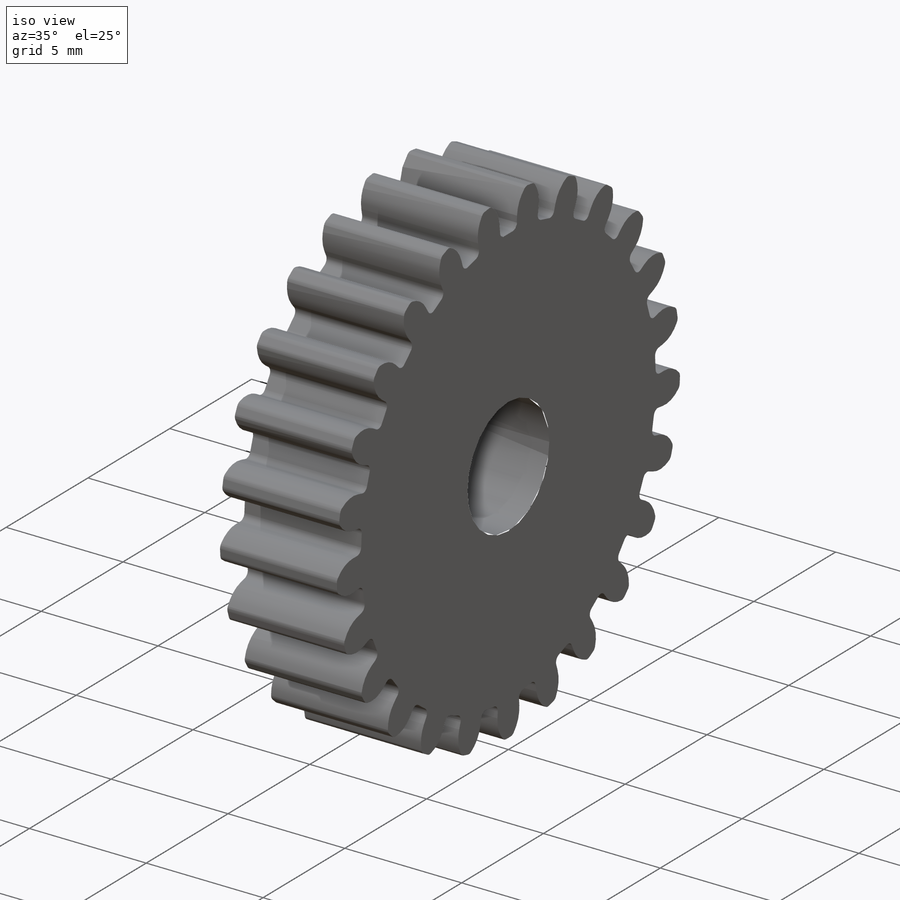
[diagram: iso view]
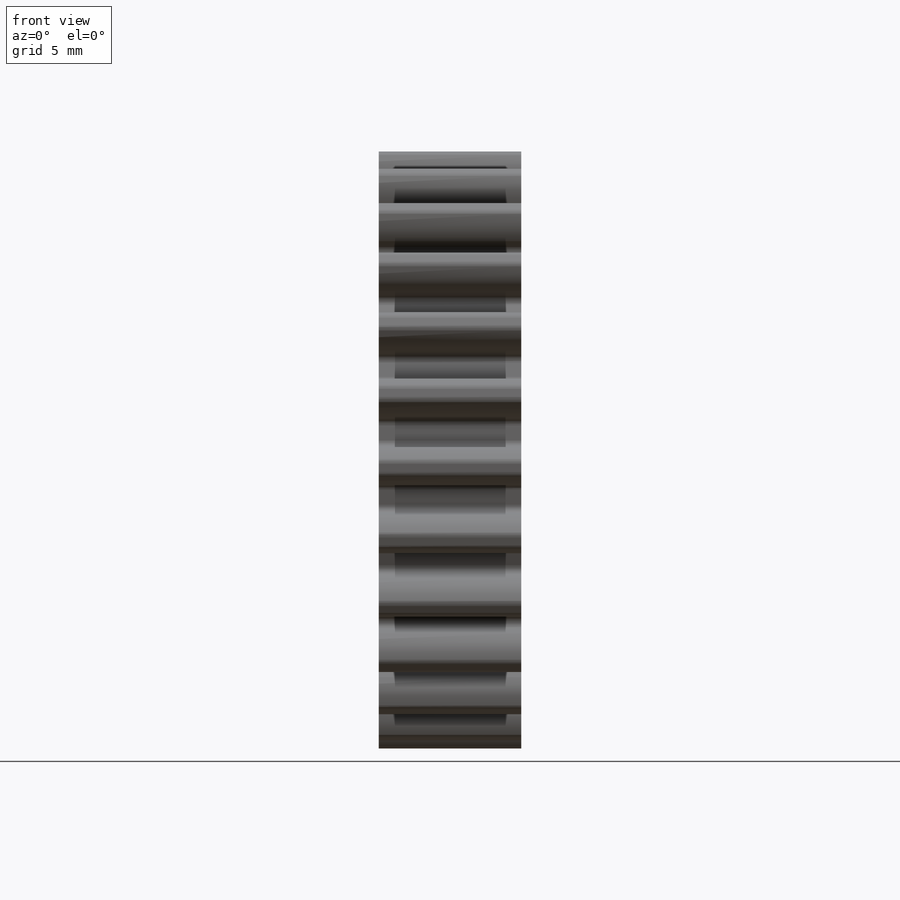
[diagram: front view]
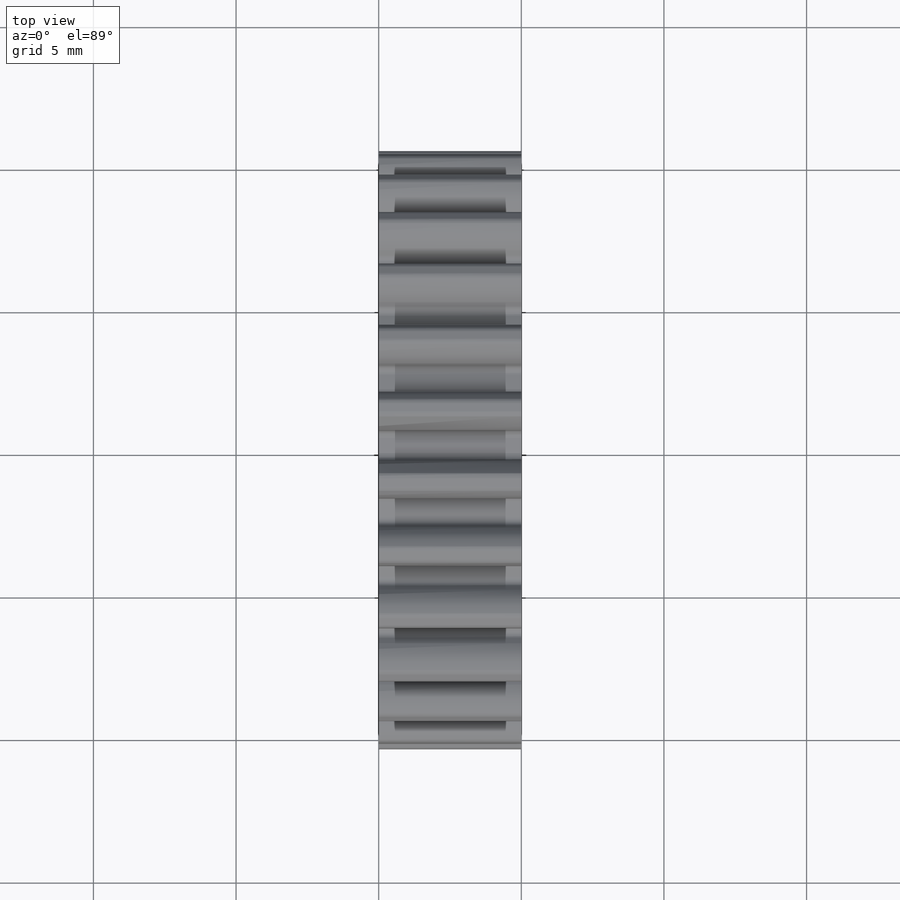
[diagram: top view]
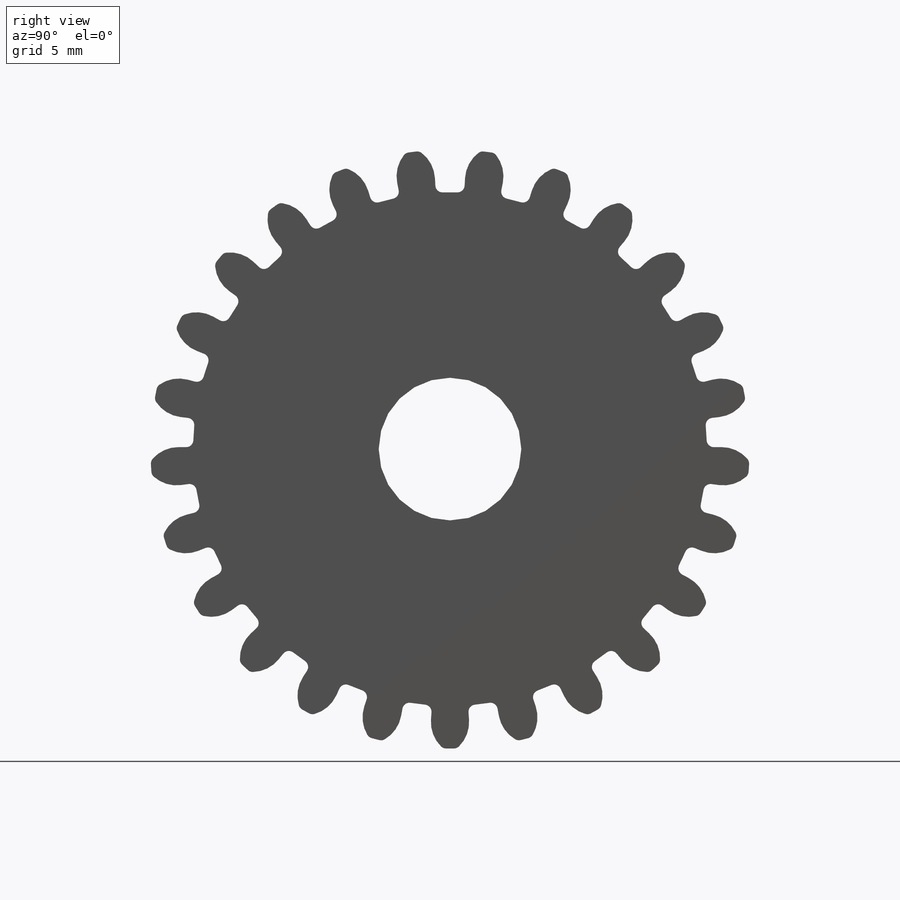
[diagram: right view]
SOLIDWORKS PART (.sldprt)
format: sldprt  version: not decoded by parser v0  size: 365,568 bytes
history: native  units: mm
features: plane x3, sketch x2, material x1, extrude x1, cut_extrude x1, fillet x1, pattern_circular x1 (+10 scaffold rows collapsed)
feature tree (20):
  scaffold x10  (default folders/planes/origin — collapsed)
  material  "Matériau <non spécifié>"
  plane  "Plan de face"
  plane  "Plan de dessus"
  plane  "Plan de droite"
  sketch  "Esquisse1"  dims[D1=21.0mm D2=5.0mm]
  extrude  "Extrusion1"  Depth=5mm
  sketch  "Esquisse22"  dims[c1.D1=2.5mm c1.D2=0.5mm c1.D3=2.0mm c1.D4=~1.854647mm c2.D4=180.0deg c2.D5=~1.848487mm c3.D5=180.0deg c3.D6=0.5mm c3.D1=0.5mm c3.D3=1.5mm]
  cut_extrude  "Enlèv. mat.-Extru.2"  [1 undecoded]
  fillet  "Congé2"  Radius=0.25mm
  pattern_circular  "Répétition circulaire1"  Count=25 Angle=360deg
decode coverage: 5 of 6 modeling features carry decoded parameters
note: ~ marks probable driven/reference dimensions
note: 1 parameter value undecoded
note: suppression state not decoded; provenance and decode notes live in map.json
